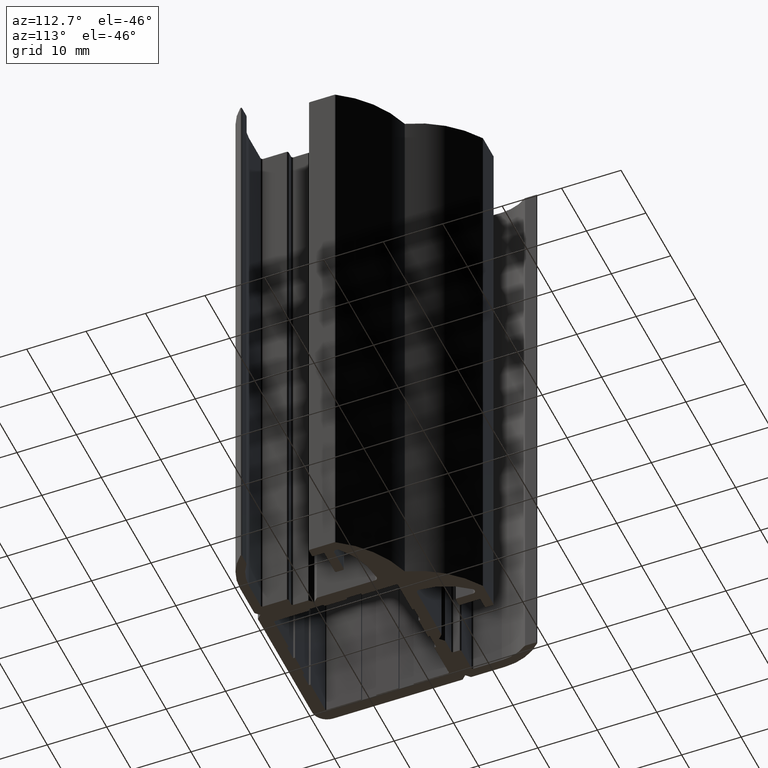
[diagram: clean part render]
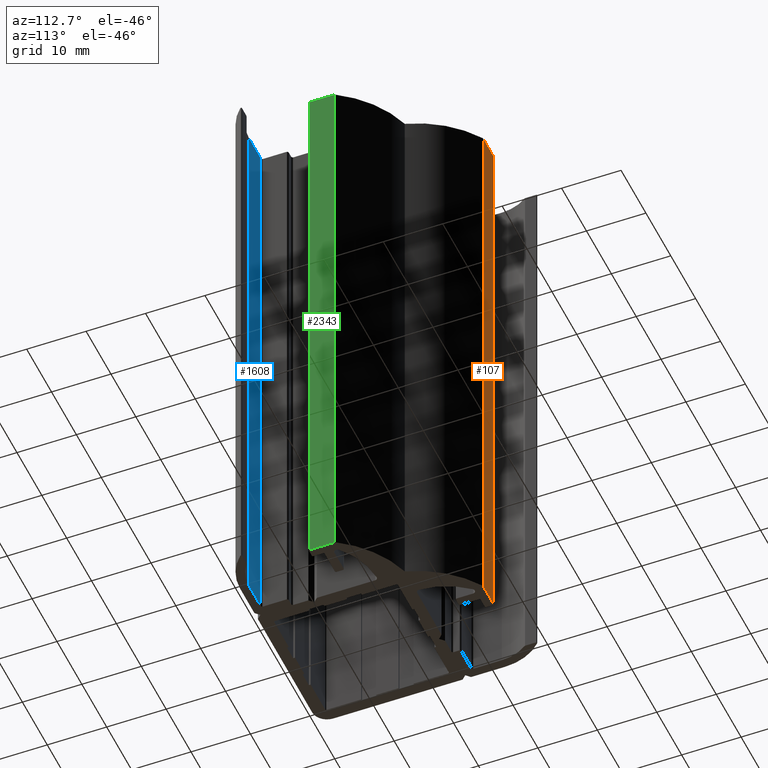
[diagram: same view with three faces highlighted in distinct colors, each labeled with its STEP entity id]
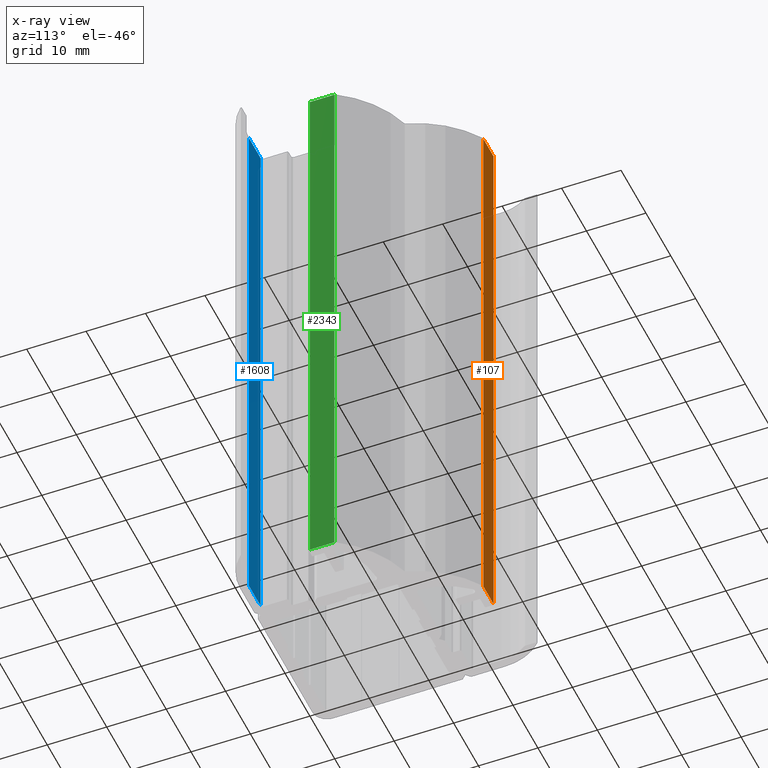
[diagram: x-ray of the same camera — body ghosted, the three highlighted faces saturated]
A machine part, auxiliary view with three faces highlighted in distinct colors.
The next image is the same camera in x-ray (body ghosted, the three faces saturated) — at least one of them is partly hidden behind the body in this view.
Their STEP definitions:

[orange] entity #107 — the highlighted planar face has unit normal (0, 1, 0).
#49=CARTESIAN_POINT('',(-46.049362951676130,34.999999996500037,0.0));
#50=VERTEX_POINT('',#49);
#58=CARTESIAN_POINT('',(-46.049362951676130,34.999999996500037,100.0));
#59=VERTEX_POINT('',#58);
#60=CARTESIAN_POINT('',(-46.049362951676130,34.999999996500037,0.0));
#61=DIRECTION('',(0.0,0.0,1.0));
#62=VECTOR('',#61,100.0);
#63=LINE('',#60,#62);
#64=EDGE_CURVE('',#50,#59,#63,.T.);
#77=CARTESIAN_POINT('',(-46.049362951676130,34.999999996500037,0.0));
#78=DIRECTION('',(0.0,1.0,0.0));
#79=DIRECTION('',(-1.0,0.0,0.0));
#80=AXIS2_PLACEMENT_3D('',#77,#78,#79);
#81=PLANE('',#80);
#82=CARTESIAN_POINT('',(-50.196446609387067,34.999999996500037,0.0));
#83=VERTEX_POINT('',#82);
#84=CARTESIAN_POINT('',(-46.049362951676130,34.999999996500037,0.0));
#85=DIRECTION('',(-1.0,0.0,0.0));
#86=VECTOR('',#85,4.147083657710937);
#87=LINE('',#84,#86);
#88=EDGE_CURVE('',#50,#83,#87,.T.);
#89=ORIENTED_EDGE('',*,*,#88,.T.);
#90=CARTESIAN_POINT('',(-50.196446609387067,34.999999996500037,100.0));
#91=VERTEX_POINT('',#90);
#92=CARTESIAN_POINT('',(-50.196446609387067,34.999999996500037,0.0));
#93=DIRECTION('',(0.0,0.0,1.0));
#94=VECTOR('',#93,100.0);
#95=LINE('',#92,#94);
#96=EDGE_CURVE('',#83,#91,#95,.T.);
#97=ORIENTED_EDGE('',*,*,#96,.T.);
#98=CARTESIAN_POINT('',(-46.049362951676130,34.999999996500037,100.0));
#99=DIRECTION('',(-1.0,0.0,0.0));
#100=VECTOR('',#99,4.147083657710937);
#101=LINE('',#98,#100);
#102=EDGE_CURVE('',#59,#91,#101,.T.);
#103=ORIENTED_EDGE('',*,*,#102,.F.);
#104=ORIENTED_EDGE('',*,*,#64,.F.);
#105=EDGE_LOOP('',(#89,#97,#103,#104));
#106=FACE_OUTER_BOUND('',#105,.T.);
#107=ADVANCED_FACE('',(#106),#81,.T.);

[blue] entity #1608 — the highlighted planar face has unit normal (0, 1, 0).
#1550=CARTESIAN_POINT('',(-31.896446610125849,1.499999999484317,0.0));
#1551=VERTEX_POINT('',#1550);
#1559=CARTESIAN_POINT('',(-31.896446610125849,1.499999999484317,100.0));
#1560=VERTEX_POINT('',#1559);
#1561=CARTESIAN_POINT('',(-31.896446610125849,1.499999999484317,0.0));
#1562=DIRECTION('',(0.0,0.0,1.0));
#1563=VECTOR('',#1562,100.0);
#1564=LINE('',#1561,#1563);
#1565=EDGE_CURVE('',#1551,#1560,#1564,.T.);
#1578=CARTESIAN_POINT('',(-31.896446610125849,1.499999999484317,0.0));
#1579=DIRECTION('',(0.0,1.0,0.0));
#1580=DIRECTION('',(-1.0,0.0,0.0));
#1581=AXIS2_PLACEMENT_3D('',#1578,#1579,#1580);
#1582=PLANE('',#1581);
#1583=CARTESIAN_POINT('',(-36.596446609655914,1.499999999484317,0.0));
#1584=VERTEX_POINT('',#1583);
#1585=CARTESIAN_POINT('',(-31.896446610125849,1.499999999484317,0.0));
#1586=DIRECTION('',(-1.0,0.0,0.0));
#1587=VECTOR('',#1586,4.699999999530064);
#1588=LINE('',#1585,#1587);
#1589=EDGE_CURVE('',#1551,#1584,#1588,.T.);
#1590=ORIENTED_EDGE('',*,*,#1589,.T.);
#1591=CARTESIAN_POINT('',(-36.596446609655914,1.499999999484317,100.0));
#1592=VERTEX_POINT('',#1591);
#1593=CARTESIAN_POINT('',(-36.596446609655914,1.499999999484317,0.0));
#1594=DIRECTION('',(0.0,0.0,1.0));
#1595=VECTOR('',#1594,100.0);
#1596=LINE('',#1593,#1595);
#1597=EDGE_CURVE('',#1584,#1592,#1596,.T.);
#1598=ORIENTED_EDGE('',*,*,#1597,.T.);
#1599=CARTESIAN_POINT('',(-31.896446610125849,1.499999999484317,100.0));
#1600=DIRECTION('',(-1.0,0.0,0.0));
#1601=VECTOR('',#1600,4.699999999530064);
#1602=LINE('',#1599,#1601);
#1603=EDGE_CURVE('',#1560,#1592,#1602,.T.);
#1604=ORIENTED_EDGE('',*,*,#1603,.F.);
#1605=ORIENTED_EDGE('',*,*,#1565,.F.);
#1606=EDGE_LOOP('',(#1590,#1598,#1604,#1605));
#1607=FACE_OUTER_BOUND('',#1606,.T.);
#1608=ADVANCED_FACE('',(#1607),#1582,.T.);

[green] entity #2343 — the highlighted planar face has unit normal (1, 0, 0).
#2285=CARTESIAN_POINT('',(-28.396446610458497,13.199999998317480,0.0));
#2286=VERTEX_POINT('',#2285);
#2294=CARTESIAN_POINT('',(-28.396446610458497,13.199999998317480,100.0));
#2295=VERTEX_POINT('',#2294);
#2296=CARTESIAN_POINT('',(-28.396446610458497,13.199999998317480,0.0));
#2297=DIRECTION('',(0.0,0.0,1.0));
#2298=VECTOR('',#2297,100.0);
#2299=LINE('',#2296,#2298);
#2300=EDGE_CURVE('',#2286,#2295,#2299,.T.);
#2313=CARTESIAN_POINT('',(-28.396446610458497,13.199999998317480,0.0));
#2314=DIRECTION('',(1.0,0.0,0.0));
#2315=DIRECTION('',(0.0,1.0,0.0));
#2316=AXIS2_PLACEMENT_3D('',#2313,#2314,#2315);
#2317=PLANE('',#2316);
#2318=CARTESIAN_POINT('',(-28.396446610458497,17.347083656028417,0.0));
#2319=VERTEX_POINT('',#2318);
#2320=CARTESIAN_POINT('',(-28.396446610458497,13.199999998317480,0.0));
#2321=DIRECTION('',(0.0,1.0,0.0));
#2322=VECTOR('',#2321,4.147083657710937);
#2323=LINE('',#2320,#2322);
#2324=EDGE_CURVE('',#2286,#2319,#2323,.T.);
#2325=ORIENTED_EDGE('',*,*,#2324,.T.);
#2326=CARTESIAN_POINT('',(-28.396446610458497,17.347083656028417,100.0));
#2327=VERTEX_POINT('',#2326);
#2328=CARTESIAN_POINT('',(-28.396446610458497,17.347083656028417,0.0));
#2329=DIRECTION('',(0.0,0.0,1.0));
#2330=VECTOR('',#2329,100.0);
#2331=LINE('',#2328,#2330);
#2332=EDGE_CURVE('',#2319,#2327,#2331,.T.);
#2333=ORIENTED_EDGE('',*,*,#2332,.T.);
#2334=CARTESIAN_POINT('',(-28.396446610458497,13.199999998317480,100.0));
#2335=DIRECTION('',(0.0,1.0,0.0));
#2336=VECTOR('',#2335,4.147083657710937);
#2337=LINE('',#2334,#2336);
#2338=EDGE_CURVE('',#2295,#2327,#2337,.T.);
#2339=ORIENTED_EDGE('',*,*,#2338,.F.);
#2340=ORIENTED_EDGE('',*,*,#2300,.F.);
#2341=EDGE_LOOP('',(#2325,#2333,#2339,#2340));
#2342=FACE_OUTER_BOUND('',#2341,.T.);
#2343=ADVANCED_FACE('',(#2342),#2317,.T.);